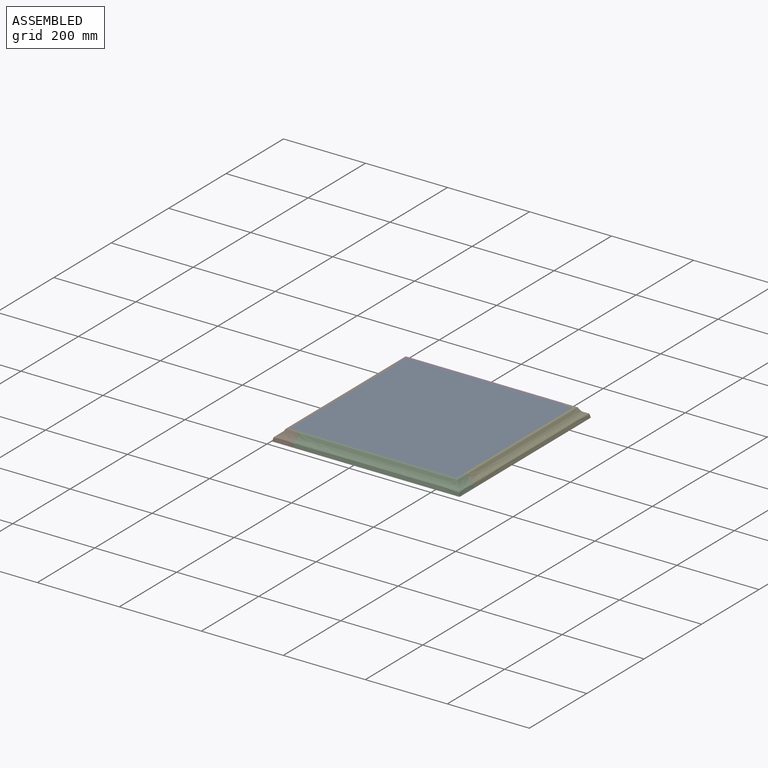
[diagram: assembled view]
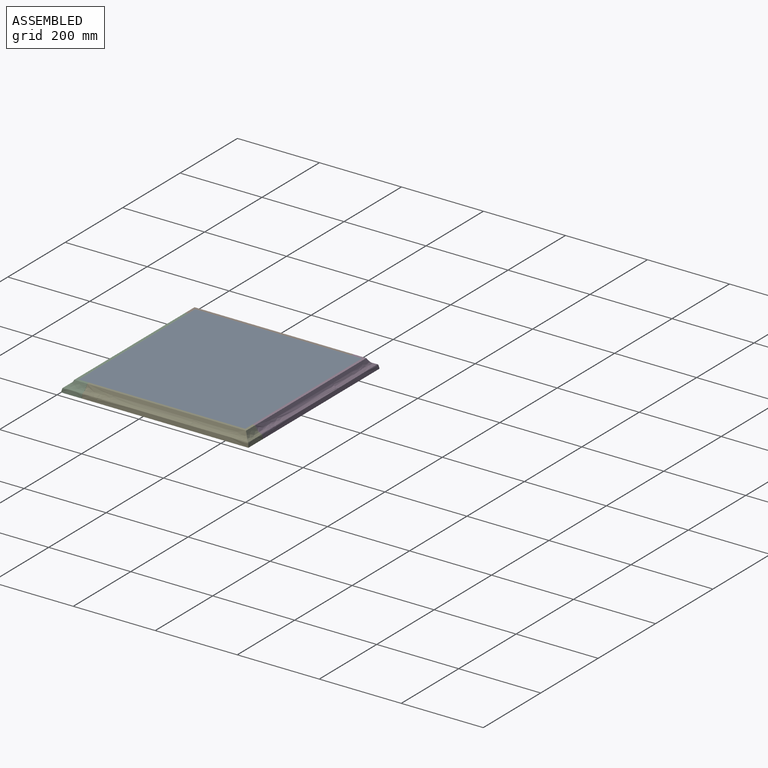
[diagram: assembled view, second angle]
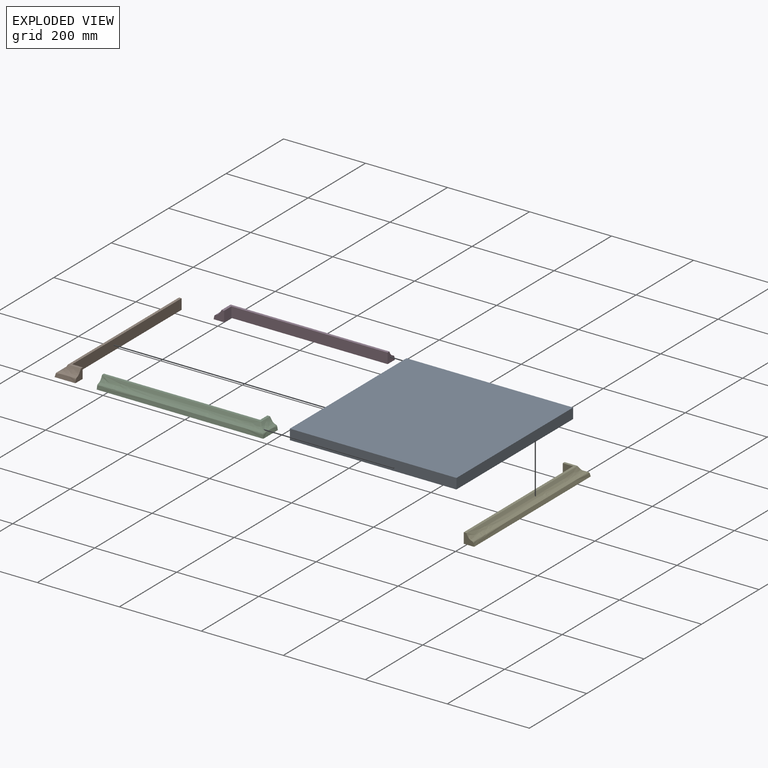
[diagram: exploded view]
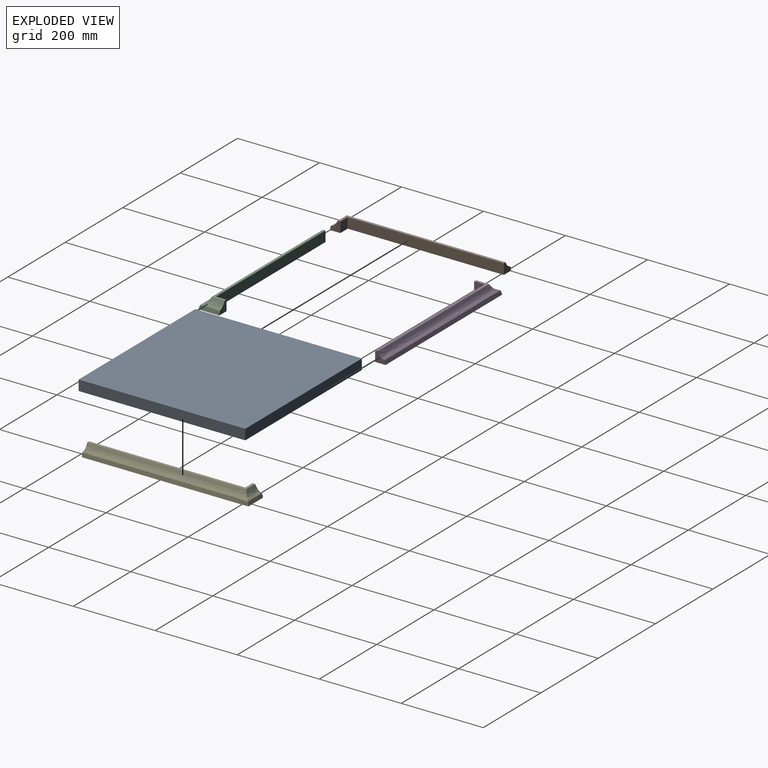
[diagram: exploded view, second angle]
ASSEMBLY  parts=5 mates=4
PART A: 6 faces, bbox 406.4x406.4x25.4 mm
  f0: plane 406.4x25.4mm, normal (1,0,0), area 10322.6mm2, adj f1,f3,f4,f5
  f1: plane 406.4x25.4mm, normal (0,1,0), area 10322.6mm2, adj f0,f2,f4,f5
  f2: plane 406.4x25.4mm, normal (-1,0,0), area 10322.6mm2, adj f1,f3,f4,f5
  f3: plane 406.4x25.4mm, normal (0,-1,0), area 10322.6mm2, adj f0,f2,f4,f5
  f4: plane 406.4x406.4mm, normal (0,0,1), area 165161mm2, adj f0,f1,f2,f3
  f5: plane 406.4x406.4mm, normal (0,0,-1), area 165161mm2, adj f0,f1,f2,f3
PART B: 8 faces, bbox 50.8x406.4x25.4 mm
  f0: extruded ~50.8x25.4mm, area 1410.3mm2, adj f1,f2,f6,f7
  f1: plane 387.35x31.75mm, normal (0,0,1), area 2621mm2, adj f0,f2,f3,f4,f5,f7
  f2: plane 25.4x25.4mm, normal (1,0,0), area 427mm2, adj f0,f1,f3,f6
  f3: plane 25.4x25.4mm, normal (0,1,0), area 645.2mm2, adj f1,f2,f4,f6
  f4: plane 381x25.4mm, normal (1,0,0), area 9677.4mm2, adj f1,f3,f5,f6
  f5: plane 25.4x25.4mm, normal (0,1,0), area 421.3mm2, adj f1,f4,f6,f7
  f6: plane 406.4x50.8mm, normal (0,0,-1), area 10967.7mm2, adj f0,f2,f3,f4,f5,f7
  f7: extruded ~406.4x25.4mm, area 13407.7mm2, adj f0,f1,f5,f6
PART C: same geometry as B
PART D: same geometry as B
PART E: same geometry as B
PLACE A t=(1.55,-0.41,-1.96)mm
PLACE B t=(-214.35,-25.81,-1.96)mm
PLACE C rot(axis=(0,0,1),90deg) t=(26.95,-216.31,-1.96)mm
PLACE D rot(axis=(0,0,-1),90deg) t=(-23.85,215.49,-1.96)mm
PLACE E rot(axis=(0,0,1),180deg) t=(217.45,24.99,-1.96)mm
MATE fastened E.f3 <-> A.f1  axis (0,-1,0) through (204.75,202.79,10.74)mm
MATE fastened C.f4 <-> A.f3  axis (0,1,0) through (204.75,-203.61,10.74)mm
MATE fastened B.f4 <-> A.f2  axis (1,0,0) through (-201.65,-203.61,-1.96)mm
MATE fastened D.f4 <-> A.f1  axis (0,-1,0) through (-201.65,202.79,10.74)mm
